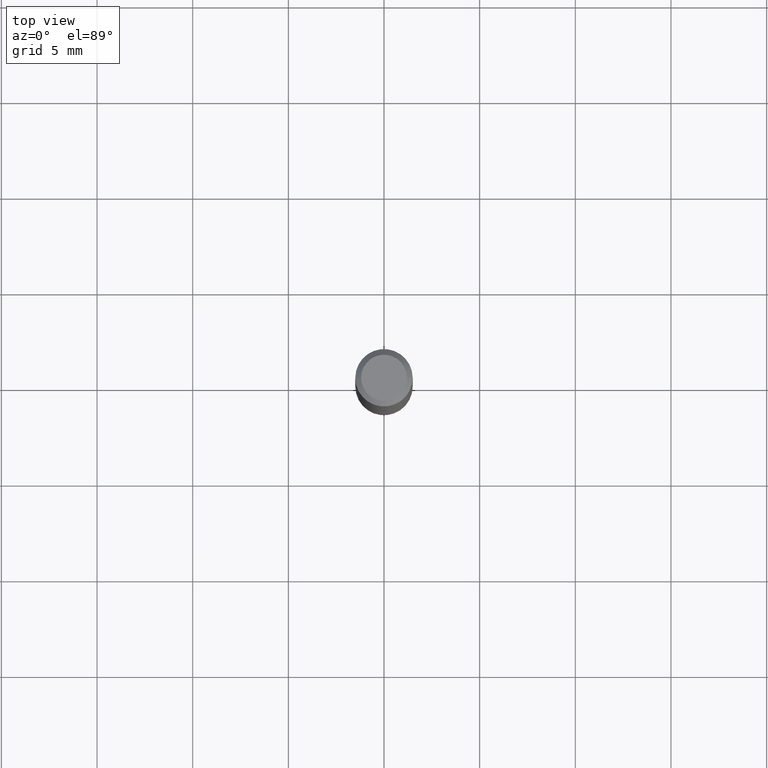
[diagram: clean part render]
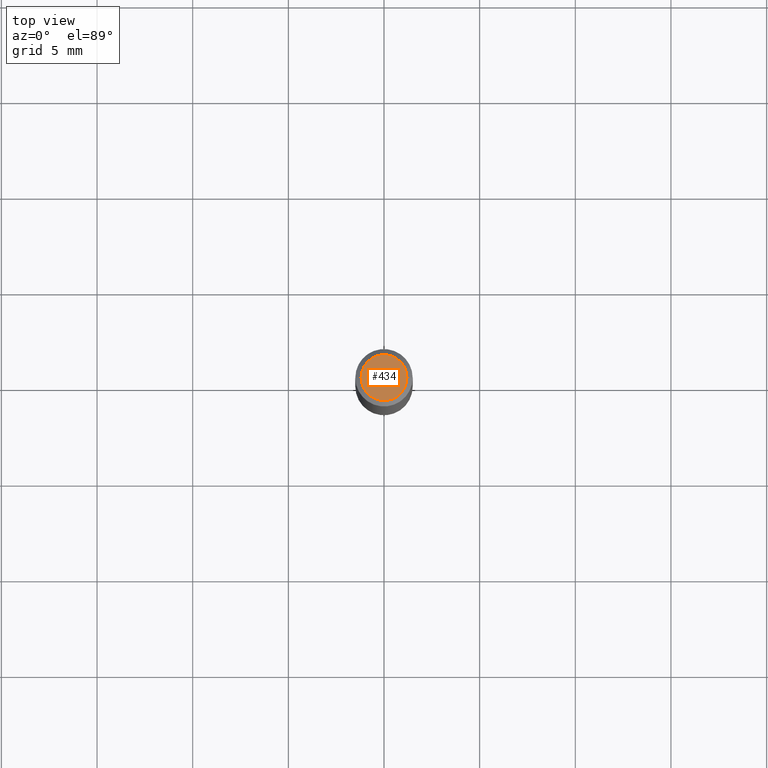
[diagram: same view with one face highlighted and labeled with its STEP entity id]
A machine part, top view. The second image highlights one B-rep face of the part: STEP entity #434.
In plain terms, the highlighted planar face has unit normal (0, -0, -1).
Its self-contained STEP definition (entity closure, byte-faithful):
#18 = CARTESIAN_POINT ( 'NONE',  ( 4.132873053354867254E-48, -5.900647395337818946E-34, -1.690012582823346072E-19 ) ) ;
#22 = EDGE_LOOP ( 'NONE', ( #339, #266 ) ) ;
#51 = CARTESIAN_POINT ( 'NONE',  ( -0.04724000000000000421, 3.504923541997677355E-16, -3.380025165670481712E-19 ) ) ;
#54 = DIRECTION ( 'NONE',  ( -2.445468806185136597E-29, 3.491481338843145583E-15, 1.000000000000000000 ) ) ;
#56 = CIRCLE ( 'NONE', #292, 0.04724000000000000421 ) ;
#72 = DIRECTION ( 'NONE',  ( 1.000000000000000000, -6.982962677686266711E-15, 4.876185090822587894E-29 ) ) ;
#76 = CARTESIAN_POINT ( 'NONE',  ( 0.04724000000000000421, -3.852183633974369345E-16, -3.380025165621689721E-19 ) ) ;
#78 = AXIS2_PLACEMENT_3D ( 'NONE', #18, #470, #201 ) ;
#119 = DIRECTION ( 'NONE',  ( 1.000000000000000000, -6.982962677686266711E-15, 4.876185090822587894E-29 ) ) ;
#135 = EDGE_CURVE ( 'NONE', #403, #300, #56, .T. ) ;
#190 = AXIS2_PLACEMENT_3D ( 'NONE', #265, #340, #72 ) ;
#197 = CARTESIAN_POINT ( 'NONE',  ( 8.265746106709734507E-48, -1.180129479067563789E-33, -3.380025165646692144E-19 ) ) ;
#198 = PLANE ( 'NONE',  #78 ) ;
#201 = DIRECTION ( 'NONE',  ( -1.000000000000000000, 6.982962677686265922E-15, -4.876176775795935793E-29 ) ) ;
#265 = CARTESIAN_POINT ( 'NONE',  ( 8.265746106709734507E-48, -1.180129479067563789E-33, -3.380025165646692144E-19 ) ) ;
#266 = ORIENTED_EDGE ( 'NONE', *, *, #323, .T. ) ;
#292 = AXIS2_PLACEMENT_3D ( 'NONE', #197, #54, #119 ) ;
#300 = VERTEX_POINT ( 'NONE', #76 ) ;
#304 = CIRCLE ( 'NONE', #190, 0.04724000000000000421 ) ;
#318 = FACE_OUTER_BOUND ( 'NONE', #22, .T. ) ;
#323 = EDGE_CURVE ( 'NONE', #300, #403, #304, .T. ) ;
#339 = ORIENTED_EDGE ( 'NONE', *, *, #135, .T. ) ;
#340 = DIRECTION ( 'NONE',  ( -2.445468806185136597E-29, 3.491481338843145583E-15, 1.000000000000000000 ) ) ;
#403 = VERTEX_POINT ( 'NONE', #51 ) ;
#434 = ADVANCED_FACE ( 'NONE', ( #318 ), #198, .F. ) ;
#470 = DIRECTION ( 'NONE',  ( 2.438088387897960049E-29, -3.491481338843145188E-15, -1.000000000000000000 ) ) ;